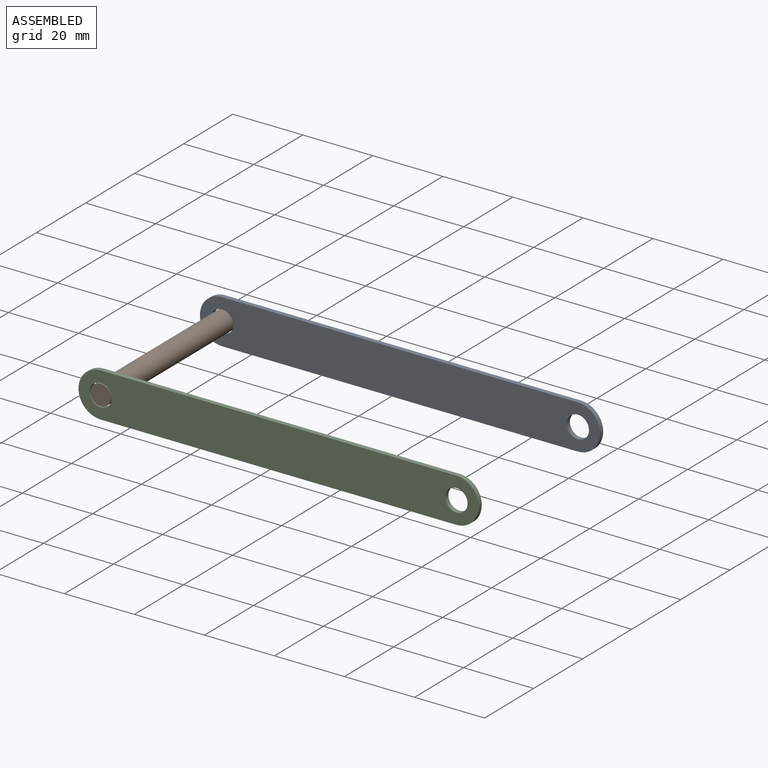
[diagram: assembled view]
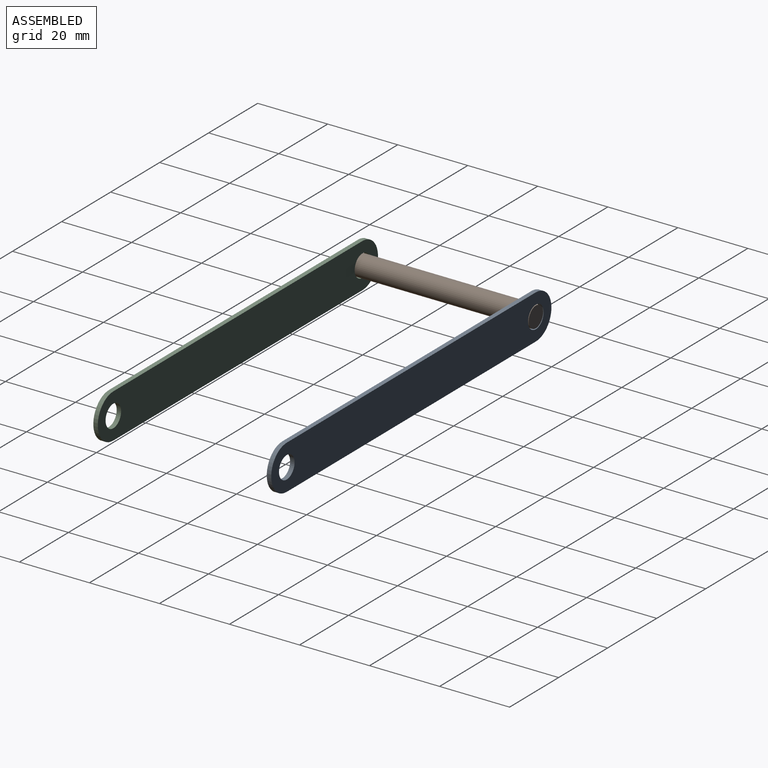
[diagram: assembled view, second angle]
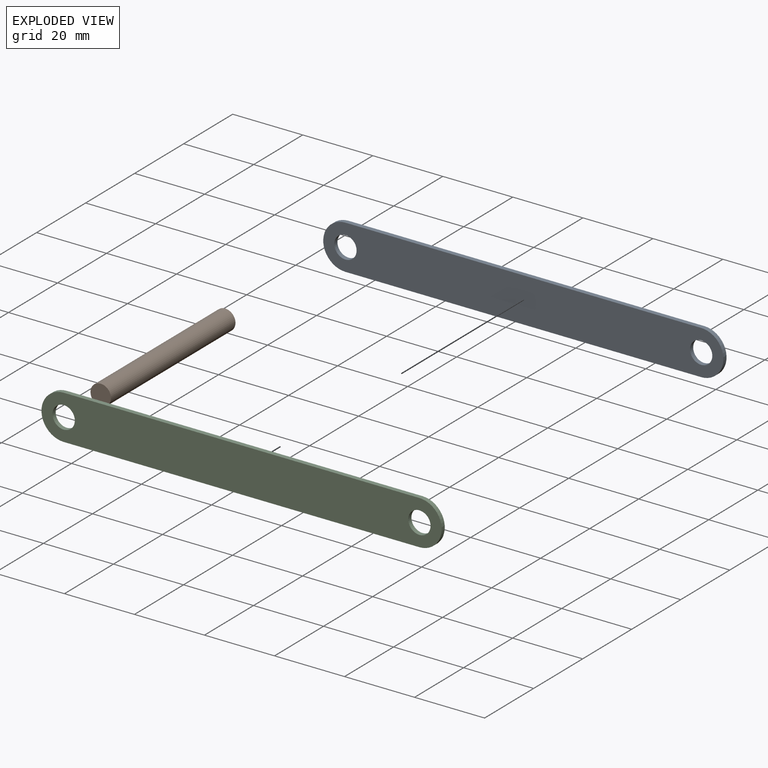
[diagram: exploded view]
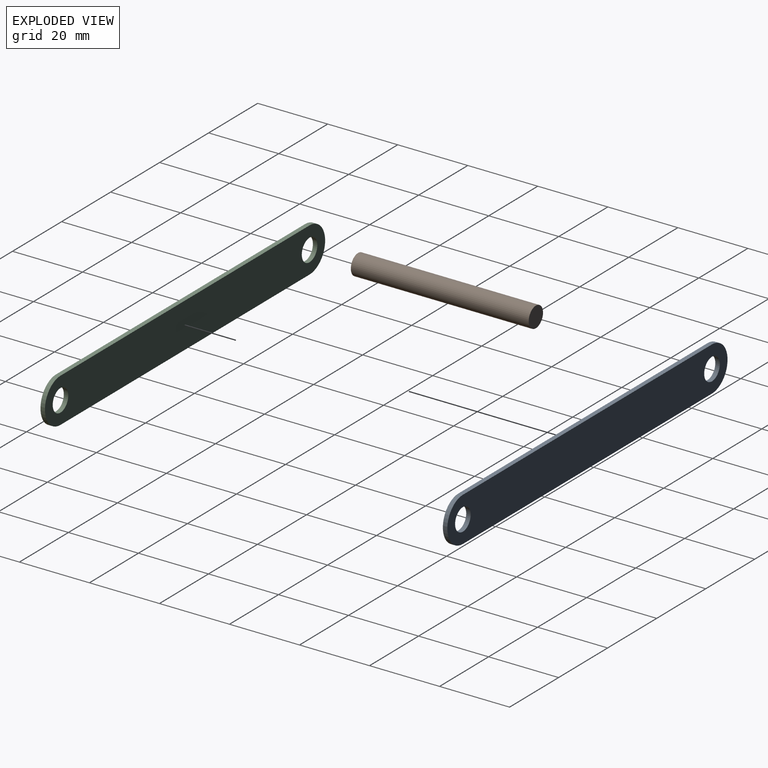
[diagram: exploded view, second angle]
ASSEMBLY  parts=3 mates=2
PART A: 8 faces, bbox 114.3x1.3x12.7 mm
  f0: plane 101.6x1.27mm, normal (0,0,-1), area 129mm2, adj f1,f3,f6,f7
  f1: cylinder r=6.35mm len=12.7mm, axis (0,1,0), area 25.3mm2, adj f0,f2,f6,f7
  f2: plane 101.6x1.27mm, normal (0,0,1), area 129mm2, adj f1,f3,f6,f7
  f3: cylinder r=6.35mm len=12.7mm, axis (0,1,0), area 25.3mm2, adj f0,f2,f6,f7
  f4: cylinder r=3.17mm len=6.35mm, axis (0,1,0), area 25.3mm2, adj f6,f7
  f5: cylinder r=3.17mm len=6.35mm, axis (0,1,0), area 25.3mm2, adj f6,f7
  f6: plane 114.3x12.7mm, normal (0,-1,0), area 1353.7mm2, adj f0,f1,f2,f3,f4,f5
  f7: plane 114.3x12.7mm, normal (0,1,0), area 1353.7mm2, adj f0,f1,f2,f3,f4,f5
PART B: 3 faces, bbox 5.8x50.8x5.8 mm
  f0: cylinder r=2.92mm len=50.8mm, axis (0,1,0), area 932.3mm2, adj f1,f2
  f1: plane 5.84x5.84mm, normal (0,-1,0), area 26.8mm2, adj f0
  f2: plane 5.84x5.84mm, normal (0,1,0), area 26.8mm2, adj f0
PART C: same geometry as A
PLACE A t=(4.81,10.65,18.66)mm
PLACE B t=(-45.99,-14.12,18.66)mm
PLACE C t=(4.81,-38.88,18.66)mm
MATE fastened B.f0 <-> A.f3  axis (0,1,0) through (-45.99,11.28,18.66)mm
MATE fastened B.f0 <-> C.f3  axis (0,-1,0) through (-45.99,-39.52,18.66)mm
